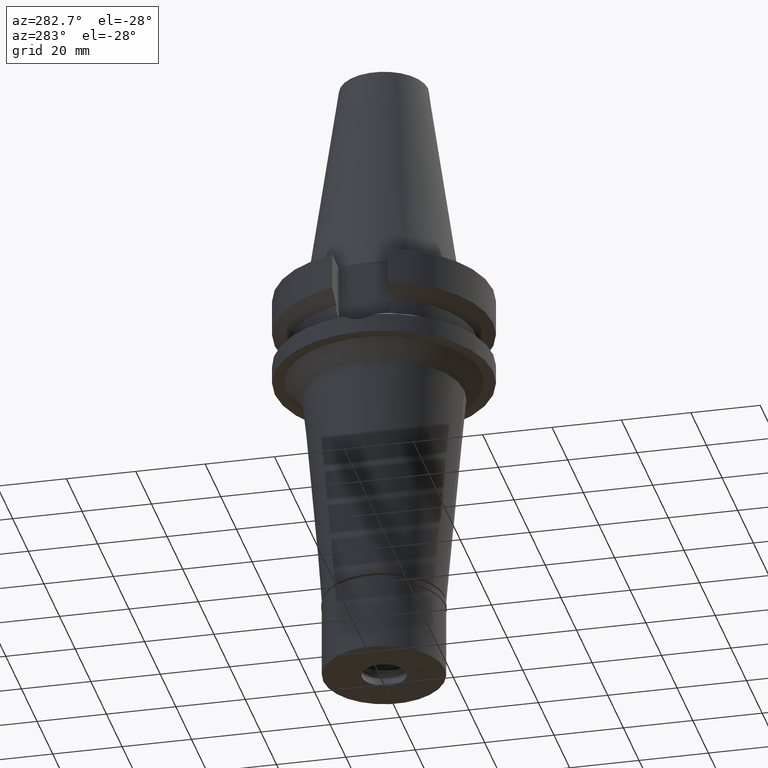
[diagram: clean part render]
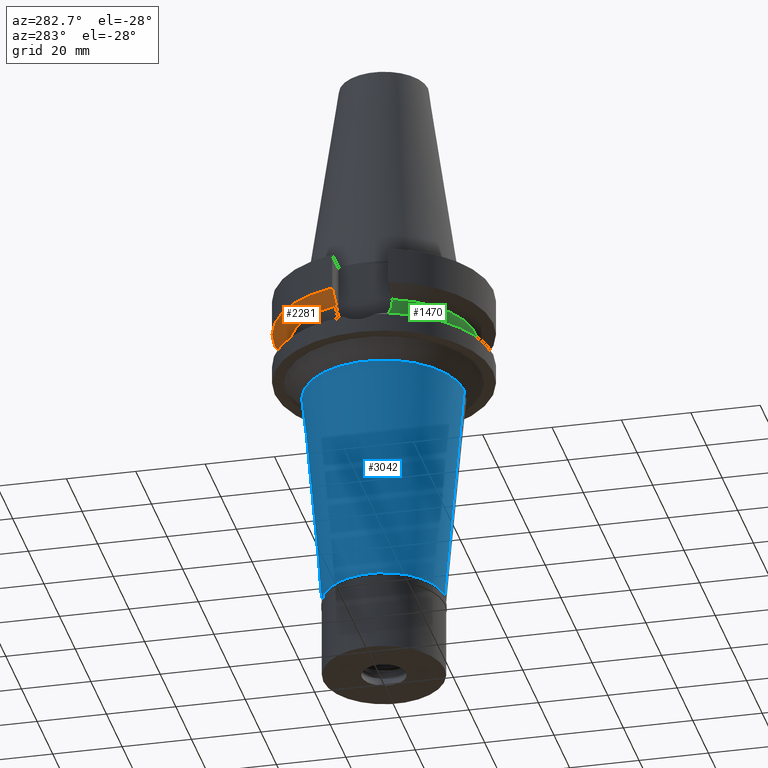
[diagram: same view with three faces highlighted in distinct colors, each labeled with its STEP entity id]
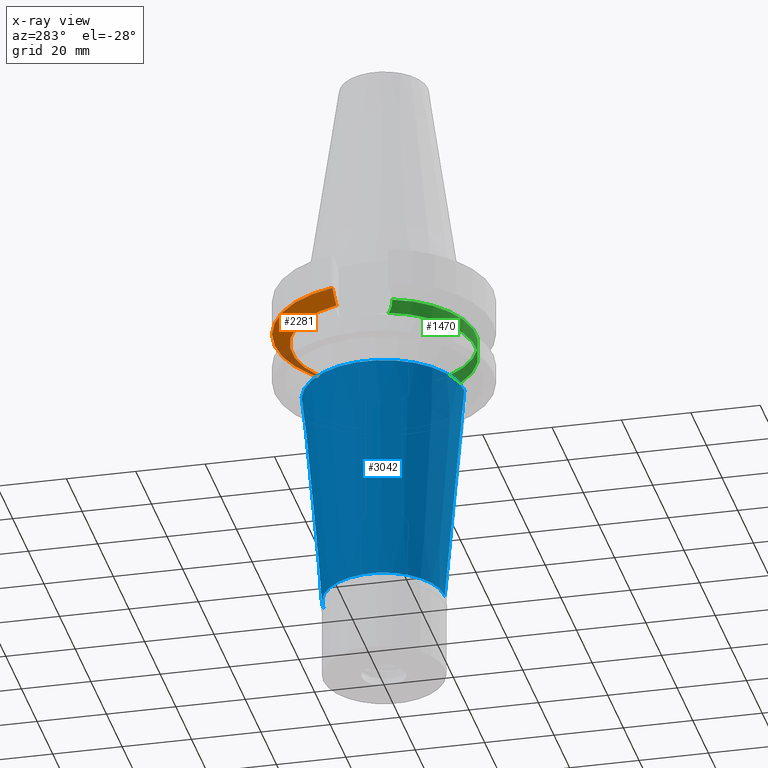
[diagram: x-ray of the same camera — body ghosted, the three highlighted faces saturated]
A machine part, auxiliary view with three faces highlighted in distinct colors.
The next image is the same camera in x-ray (body ghosted, the three faces saturated) — at least one of them is partly hidden behind the body in this view.
Their STEP definitions:

[orange] entity #2281 — the highlighted conical surface has half-angle 60 deg.
#112 = B_SPLINE_CURVE_WITH_KNOTS ( 'NONE', 3,
 ( #300, #2241, #2683, #802 ),
 .UNSPECIFIED., .F., .F.,
 ( 4, 4 ),
 ( 0.0000000000000000000, 1.000000000000000000 ),
 .UNSPECIFIED. ) ;
#117 = DIRECTION ( 'NONE',  ( 0.0000000000000000000, 1.000000000000000000, 0.0000000000000000000 ) ) ;
#172 = CIRCLE ( 'NONE', #2558, 26.50000000000000711 ) ;
#238 = AXIS2_PLACEMENT_3D ( 'NONE', #2807, #2314, #117 ) ;
#300 = CARTESIAN_POINT ( 'NONE',  ( -25.24772216385000334, 8.050001586146999344, -14.45224487905000110 ) ) ;
#425 = CARTESIAN_POINT ( 'NONE',  ( 30.45402291371999937, 8.049999277678001164, -11.56551215847000158 ) ) ;
#551 = CARTESIAN_POINT ( 'NONE',  ( 0.0000000000000000000, 1.065333950388000029E-14, -14.45225699861000024 ) ) ;
#712 = CARTESIAN_POINT ( 'NONE',  ( 25.24772413116000180, 8.049995415961999967, -14.45229202664000034 ) ) ;
#735 = CARTESIAN_POINT ( 'NONE',  ( 26.83754616580073815, 8.049990821773336691, -13.57774887784885642 ) ) ;
#802 = CARTESIAN_POINT ( 'NONE',  ( -30.45402162745000041, 8.050004143763999309, -11.56546832740999875 ) ) ;
#850 = AXIS2_PLACEMENT_3D ( 'NONE', #896, #2812, #2301 ) ;
#896 = CARTESIAN_POINT ( 'NONE',  ( 0.0000000000000000000, 1.065333950388000029E-14, -11.56550565266999975 ) ) ;
#950 = CARTESIAN_POINT ( 'NONE',  ( 28.57292329591216884, 8.049998556296824148, -12.61549605234778682 ) ) ;
#974 = EDGE_CURVE ( 'NONE', #1044, #1291, #172, .T. ) ;
#1044 = VERTEX_POINT ( 'NONE', #1724 ) ;
#1112 = ORIENTED_EDGE ( 'NONE', *, *, #2742, .T. ) ;
#1291 = VERTEX_POINT ( 'NONE', #2221 ) ;
#1304 = CONICAL_SURFACE ( 'NONE', #238, 29.00000000000000000, 1.047197551196400456 ) ;
#1533 = DIRECTION ( 'NONE',  ( -0.9527442516822307583, 0.3037735849057093818, 0.0000000000000000000 ) ) ;
#1628 = FACE_OUTER_BOUND ( 'NONE', #2019, .T. ) ;
#1711 = EDGE_CURVE ( 'NONE', #1749, #2177, #1911, .T. ) ;
#1724 = CARTESIAN_POINT ( 'NONE',  ( -25.24772216385000334, 8.050001586146999344, -14.45224487905000110 ) ) ;
#1749 = VERTEX_POINT ( 'NONE', #425 ) ;
#1911 = CIRCLE ( 'NONE', #850, 31.50000000000000000 ) ;
#2019 = EDGE_LOOP ( 'NONE', ( #2885, #2116, #2072, #1112 ) ) ;
#2072 = ORIENTED_EDGE ( 'NONE', *, *, #974, .F. ) ;
#2116 = ORIENTED_EDGE ( 'NONE', *, *, #2522, .T. ) ;
#2177 = VERTEX_POINT ( 'NONE', #2230 ) ;
#2221 = CARTESIAN_POINT ( 'NONE',  ( 25.24772413116000180, 8.049995415961999967, -14.45229202664000034 ) ) ;
#2230 = CARTESIAN_POINT ( 'NONE',  ( -30.45402162745000041, 8.050004143763999309, -11.56546832740999875 ) ) ;
#2241 = CARTESIAN_POINT ( 'NONE',  ( -26.83758147662552318, 8.050003175716827997, -13.57772735598590153 ) ) ;
#2281 = ADVANCED_FACE ( 'NONE', ( #1628 ), #1304, .T. ) ;
#2301 = DIRECTION ( 'NONE',  ( 0.0000000000000000000, 1.000000000000000000, 0.0000000000000000000 ) ) ;
#2314 = DIRECTION ( 'NONE',  ( 0.0000000000000000000, 0.0000000000000000000, 1.000000000000000000 ) ) ;
#2522 = EDGE_CURVE ( 'NONE', #1749, #1291, #2685, .T. ) ;
#2558 = AXIS2_PLACEMENT_3D ( 'NONE', #551, #3046, #1533 ) ;
#2632 = CARTESIAN_POINT ( 'NONE',  ( 30.45402291371999937, 8.049999277678001164, -11.56551215847000158 ) ) ;
#2683 = CARTESIAN_POINT ( 'NONE',  ( -28.57295870764646395, 8.050008282491374345, -12.61547480686212452 ) ) ;
#2685 = B_SPLINE_CURVE_WITH_KNOTS ( 'NONE', 3,
 ( #2632, #950, #735, #712 ),
 .UNSPECIFIED., .F., .F.,
 ( 4, 4 ),
 ( 0.0000000000000000000, 1.000000000000000000 ),
 .UNSPECIFIED. ) ;
#2742 = EDGE_CURVE ( 'NONE', #1044, #2177, #112, .T. ) ;
#2807 = CARTESIAN_POINT ( 'NONE',  ( 0.0000000000000000000, 1.065333950388000029E-14, -13.00888132564000088 ) ) ;
#2812 = DIRECTION ( 'NONE',  ( 0.0000000000000000000, 0.0000000000000000000, 1.000000000000000000 ) ) ;
#2885 = ORIENTED_EDGE ( 'NONE', *, *, #1711, .F. ) ;
#3046 = DIRECTION ( 'NONE',  ( 0.0000000000000000000, 0.0000000000000000000, -1.000000000000000000 ) ) ;

[blue] entity #3042 — the highlighted conical surface has half-angle 5 deg.
#84 = AXIS2_PLACEMENT_3D ( 'NONE', #1370, #160, #258 ) ;
#160 = DIRECTION ( 'NONE',  ( 0.0000000000000000000, 0.0000000000000000000, 1.000000000000000000 ) ) ;
#163 = CARTESIAN_POINT ( 'NONE',  ( 0.0000000000000000000, 23.16051653012999623, -32.00000000000000000 ) ) ;
#199 = DIRECTION ( 'NONE',  ( 0.0000000000000000000, 0.0000000000000000000, 1.000000000000000000 ) ) ;
#225 = DIRECTION ( 'NONE',  ( 0.0000000000000000000, 1.000000000000000000, 0.0000000000000000000 ) ) ;
#258 = DIRECTION ( 'NONE',  ( 0.0000000000000000000, 1.000000000000000000, 0.0000000000000000000 ) ) ;
#344 = AXIS2_PLACEMENT_3D ( 'NONE', #2139, #199, #225 ) ;
#428 = LINE ( 'NONE', #163, #517 ) ;
#443 = CONICAL_SURFACE ( 'NONE', #344, 20.33025826506000300, 0.08726646259969973729 ) ;
#517 = VECTOR ( 'NONE', #2831, 1000.000000000000000 ) ;
#581 = DIRECTION ( 'NONE',  ( 0.0000000000000000000, 0.08715574274769373464, -0.9961946980917424366 ) ) ;
#673 = EDGE_LOOP ( 'NONE', ( #1610, #2946, #1472, #3096 ) ) ;
#791 = CARTESIAN_POINT ( 'NONE',  ( 0.0000000000000000000, 0.0000000000000000000, -32.00000000000000000 ) ) ;
#832 = EDGE_CURVE ( 'NONE', #1538, #872, #1536, .T. ) ;
#872 = VERTEX_POINT ( 'NONE', #3017 ) ;
#1003 = AXIS2_PLACEMENT_3D ( 'NONE', #791, #2215, #2511 ) ;
#1045 = CIRCLE ( 'NONE', #1003, 23.16051653012999623 ) ;
#1160 = FACE_OUTER_BOUND ( 'NONE', #673, .T. ) ;
#1370 = CARTESIAN_POINT ( 'NONE',  ( 0.0000000000000000000, 0.0000000000000000000, -96.69999999999998863 ) ) ;
#1407 = EDGE_CURVE ( 'NONE', #2951, #1671, #428, .T. ) ;
#1414 = CIRCLE ( 'NONE', #84, 17.50000000000000000 ) ;
#1472 = ORIENTED_EDGE ( 'NONE', *, *, #1684, .T. ) ;
#1536 = LINE ( 'NONE', #2499, #2609 ) ;
#1538 = VERTEX_POINT ( 'NONE', #2410 ) ;
#1610 = ORIENTED_EDGE ( 'NONE', *, *, #1880, .T. ) ;
#1626 = CARTESIAN_POINT ( 'NONE',  ( 0.0000000000000000000, 23.16051653012999623, -32.00000000000000000 ) ) ;
#1671 = VERTEX_POINT ( 'NONE', #2995 ) ;
#1684 = EDGE_CURVE ( 'NONE', #1538, #2951, #1045, .T. ) ;
#1880 = EDGE_CURVE ( 'NONE', #1671, #872, #1414, .T. ) ;
#2139 = CARTESIAN_POINT ( 'NONE',  ( 0.0000000000000000000, 0.0000000000000000000, -64.35000000000000853 ) ) ;
#2215 = DIRECTION ( 'NONE',  ( 0.0000000000000000000, 0.0000000000000000000, -1.000000000000000000 ) ) ;
#2410 = CARTESIAN_POINT ( 'NONE',  ( 0.0000000000000000000, -23.16051653012999623, -32.00000000000000000 ) ) ;
#2499 = CARTESIAN_POINT ( 'NONE',  ( 0.0000000000000000000, -23.16051653012999623, -32.00000000000000000 ) ) ;
#2511 = DIRECTION ( 'NONE',  ( 0.0000000000000000000, -1.000000000000000000, 0.0000000000000000000 ) ) ;
#2609 = VECTOR ( 'NONE', #581, 1000.000000000000000 ) ;
#2831 = DIRECTION ( 'NONE',  ( 0.0000000000000000000, -0.08715574274769373464, -0.9961946980917424366 ) ) ;
#2946 = ORIENTED_EDGE ( 'NONE', *, *, #832, .F. ) ;
#2951 = VERTEX_POINT ( 'NONE', #1626 ) ;
#2995 = CARTESIAN_POINT ( 'NONE',  ( 0.0000000000000000000, 17.50000000000000000, -96.69999999999998863 ) ) ;
#3017 = CARTESIAN_POINT ( 'NONE',  ( 0.0000000000000000000, -17.50000000000000000, -96.69999999999998863 ) ) ;
#3042 = ADVANCED_FACE ( 'NONE', ( #1160 ), #443, .T. ) ;
#3096 = ORIENTED_EDGE ( 'NONE', *, *, #1407, .T. ) ;

[green] entity #1470 — the highlighted cylindrical surface (partial cylindrical patch) has radius 26.5 mm, axis along (0, 0, -1).
#27 = CARTESIAN_POINT ( 'NONE',  ( -25.34384264177291257, -7.742472632728802928, -17.15618260506893122 ) ) ;
#45 = CARTESIAN_POINT ( 'NONE',  ( -25.32546393109333138, -7.802212764485517482, -16.93200521434277661 ) ) ;
#69 = AXIS2_PLACEMENT_3D ( 'NONE', #246, #2872, #1688 ) ;
#74 = CARTESIAN_POINT ( 'NONE',  ( -25.27267964220301266, -7.973335156087142828, -16.24499043091581285 ) ) ;
#116 = CIRCLE ( 'NONE', #618, 26.50000000000000711 ) ;
#136 = EDGE_CURVE ( 'NONE', #817, #2035, #3048, .T. ) ;
#153 = ORIENTED_EDGE ( 'NONE', *, *, #1201, .T. ) ;
#170 = LINE ( 'NONE', #2031, #1367 ) ;
#246 = CARTESIAN_POINT ( 'NONE',  ( 0.0000000000000000000, 2.134987997294000229E-14, 74.33499999999999375 ) ) ;
#254 = CARTESIAN_POINT ( 'NONE',  ( 25.24772266958000344, -8.050000000000000711, -14.94999999999999929 ) ) ;
#288 = CARTESIAN_POINT ( 'NONE',  ( -25.53175183775000079, -7.097862220092999941, -18.74774300138999905 ) ) ;
#302 = DIRECTION ( 'NONE',  ( 1.016149199559004009E-06, 3.187014657406015774E-06, -0.9999999999944051421 ) ) ;
#366 = CARTESIAN_POINT ( 'NONE',  ( 25.36814761471071833, -7.663830712965396863, -17.48803584493440155 ) ) ;
#476 = DIRECTION ( 'NONE',  ( 0.9527442516822307583, -0.3037735849057093818, 0.0000000000000000000 ) ) ;
#549 = EDGE_CURVE ( 'NONE', #817, #3009, #976, .T. ) ;
#558 = LINE ( 'NONE', #1718, #1461 ) ;
#618 = AXIS2_PLACEMENT_3D ( 'NONE', #1681, #2656, #476 ) ;
#651 = CARTESIAN_POINT ( 'NONE',  ( 25.24772266958000344, -8.050000000000000711, -14.94999999999999929 ) ) ;
#738 = CARTESIAN_POINT ( 'NONE',  ( -25.24772266958000344, -8.050000000000000711, -14.94999999999999929 ) ) ;
#817 = VERTEX_POINT ( 'NONE', #2962 ) ;
#882 = CARTESIAN_POINT ( 'NONE',  ( 25.43786330456364553, -7.435589081429987424, -18.11654211998960662 ) ) ;
#910 = VERTEX_POINT ( 'NONE', #3037 ) ;
#972 = CYLINDRICAL_SURFACE ( 'NONE', #69, 26.50000000000000000 ) ;
#976 = CIRCLE ( 'NONE', #2743, 26.49999999999998224 ) ;
#1124 = ORIENTED_EDGE ( 'NONE', *, *, #136, .F. ) ;
#1138 = VERTEX_POINT ( 'NONE', #1616 ) ;
#1179 = CARTESIAN_POINT ( 'NONE',  ( 0.0000000000000000000, 0.0000000000000000000, -18.74774300138999905 ) ) ;
#1188 = CARTESIAN_POINT ( 'NONE',  ( 25.53175183775000079, -7.097862220092999941, -18.74774300138999905 ) ) ;
#1201 = EDGE_CURVE ( 'NONE', #1138, #910, #116, .T. ) ;
#1247 = EDGE_LOOP ( 'NONE', ( #1124, #2583, #1526, #2326, #153, #1355 ) ) ;
#1248 = CARTESIAN_POINT ( 'NONE',  ( -25.32840508997111684, -7.792668837077460608, -16.96920308231356600 ) ) ;
#1297 = CARTESIAN_POINT ( 'NONE',  ( -25.37569502941952138, -7.637838761643646279, -17.49780446133065936 ) ) ;
#1334 = CARTESIAN_POINT ( 'NONE',  ( 25.53175183775000079, -7.097862220092999941, -18.74774300138999905 ) ) ;
#1355 = ORIENTED_EDGE ( 'NONE', *, *, #2882, .F. ) ;
#1367 = VECTOR ( 'NONE', #2771, 1000.000000000000114 ) ;
#1375 = EDGE_CURVE ( 'NONE', #2692, #3009, #1490, .T. ) ;
#1389 = CARTESIAN_POINT ( 'NONE',  ( 25.27268336911707891, -7.971811480182260823, -16.08115959834935182 ) ) ;
#1461 = VECTOR ( 'NONE', #302, 1000.000000000000114 ) ;
#1470 = ADVANCED_FACE ( 'NONE', ( #2164 ), #972, .T. ) ;
#1490 = B_SPLINE_CURVE_WITH_KNOTS ( 'NONE', 3,
 ( #651, #2110, #3102, #1389, #2353, #1823, #2370, #1636, #1838, #1591, #2582, #366, #882, #1334 ),
 .UNSPECIFIED., .F., .F.,
 ( 4, 2, 2, 1, 1, 2, 2, 4 ),
 ( 0.0000000000000000000, 0.2499999999999888978, 0.3749999999999832911, 0.4374999999999816813, 0.4687499999999808487, 0.4843749999999804046, 0.4999999999999800160, 1.000000000000000000 ),
 .UNSPECIFIED. ) ;
#1496 = CARTESIAN_POINT ( 'NONE',  ( -25.44390372120500388, -7.408325733681293990, -18.11690357774890714 ) ) ;
#1526 = ORIENTED_EDGE ( 'NONE', *, *, #1375, .F. ) ;
#1591 = CARTESIAN_POINT ( 'NONE',  ( 25.31950905643225980, -7.821515286679934675, -16.85442525727312812 ) ) ;
#1616 = CARTESIAN_POINT ( 'NONE',  ( 25.24772266958000344, -8.050000000000000711, -14.45225699861000024 ) ) ;
#1636 = CARTESIAN_POINT ( 'NONE',  ( 25.31202572170775866, -7.845729406580135290, -16.75279821057739582 ) ) ;
#1681 = CARTESIAN_POINT ( 'NONE',  ( 0.0000000000000000000, 1.065333950388000029E-14, -14.45225699861000024 ) ) ;
#1682 = DIRECTION ( 'NONE',  ( -0.9634623335000935818, -0.2678438573619981722, 0.0000000000000000000 ) ) ;
#1688 = DIRECTION ( 'NONE',  ( 0.0000000000000000000, -1.000000000000000000, 0.0000000000000000000 ) ) ;
#1718 = CARTESIAN_POINT ( 'NONE',  ( 25.24772216379000156, -8.050001586352999894, -14.45224487748000008 ) ) ;
#1739 = CARTESIAN_POINT ( 'NONE',  ( -25.24772266958000344, -8.050000000000000711, -14.94999999999999929 ) ) ;
#1758 = CARTESIAN_POINT ( 'NONE',  ( -25.24772266957999989, -8.049999999999979394, -15.58980474793769311 ) ) ;
#1774 = CARTESIAN_POINT ( 'NONE',  ( -25.48480632951450886, -7.266730117092556895, -18.43213421325550883 ) ) ;
#1823 = CARTESIAN_POINT ( 'NONE',  ( 25.29452398121202350, -7.902090651792934572, -16.48828405102940664 ) ) ;
#1838 = CARTESIAN_POINT ( 'NONE',  ( 25.31648647172268340, -7.831300037042765894, -16.81378020971403231 ) ) ;
#1968 = CARTESIAN_POINT ( 'NONE',  ( -25.32415339823800693, -7.806463147615989584, -16.91521530250349770 ) ) ;
#2031 = CARTESIAN_POINT ( 'NONE',  ( -25.24772266958000344, -8.050000000000000711, -14.94999999999999929 ) ) ;
#2035 = VERTEX_POINT ( 'NONE', #738 ) ;
#2110 = CARTESIAN_POINT ( 'NONE',  ( 25.24772266958000699, -8.050000000000000711, -15.26991324108734283 ) ) ;
#2164 = FACE_OUTER_BOUND ( 'NONE', #1247, .T. ) ;
#2192 = EDGE_CURVE ( 'NONE', #1138, #2692, #558, .T. ) ;
#2213 = CARTESIAN_POINT ( 'NONE',  ( -25.35408242307641657, -7.708967323042730690, -17.26962711287178109 ) ) ;
#2246 = CARTESIAN_POINT ( 'NONE',  ( -25.33288764352128908, -7.778115188376813371, -17.02509724668798086 ) ) ;
#2326 = ORIENTED_EDGE ( 'NONE', *, *, #2192, .F. ) ;
#2353 = CARTESIAN_POINT ( 'NONE',  ( 25.28048358772242565, -7.947040743794929085, -16.24400980664070460 ) ) ;
#2370 = CARTESIAN_POINT ( 'NONE',  ( 25.30212919435223284, -7.877667573970344783, -16.61042047323939741 ) ) ;
#2582 = CARTESIAN_POINT ( 'NONE',  ( 25.32118155423751560, -7.816096717212926315, -16.87652453452369627 ) ) ;
#2583 = ORIENTED_EDGE ( 'NONE', *, *, #549, .T. ) ;
#2656 = DIRECTION ( 'NONE',  ( 0.0000000000000000000, 0.0000000000000000000, -1.000000000000000000 ) ) ;
#2692 = VERTEX_POINT ( 'NONE', #254 ) ;
#2743 = AXIS2_PLACEMENT_3D ( 'NONE', #1179, #3123, #1682 ) ;
#2771 = DIRECTION ( 'NONE',  ( -2.936854961040898761E-06, 9.211049204651675559E-06, 0.9999999999532657169 ) ) ;
#2872 = DIRECTION ( 'NONE',  ( 0.0000000000000000000, 0.0000000000000000000, -1.000000000000000000 ) ) ;
#2882 = EDGE_CURVE ( 'NONE', #2035, #910, #170, .T. ) ;
#2957 = CARTESIAN_POINT ( 'NONE',  ( -25.39161415862976412, -7.584927955216305584, -17.65164487413664318 ) ) ;
#2962 = CARTESIAN_POINT ( 'NONE',  ( -25.53175183775000079, -7.097862220092999941, -18.74774300138999905 ) ) ;
#3009 = VERTEX_POINT ( 'NONE', #1188 ) ;
#3037 = CARTESIAN_POINT ( 'NONE',  ( -25.24772413127999826, -8.049995415587000380, -14.45229202951000147 ) ) ;
#3048 = B_SPLINE_CURVE_WITH_KNOTS ( 'NONE', 3,
 ( #288, #1774, #1496, #2957, #1297, #2213, #27, #2246, #1248, #45, #1968, #74, #1758, #1739 ),
 .UNSPECIFIED., .F., .F.,
 ( 4, 2, 2, 1, 1, 2, 2, 4 ),
 ( 0.0000000000000000000, 0.2499999999999762412, 0.3749999999999643618, 0.4374999999999583111, 0.4687499999999565903, 0.4843749999999569233, 0.4999999999999572564, 1.000000000000000000 ),
 .UNSPECIFIED. ) ;
#3102 = CARTESIAN_POINT ( 'NONE',  ( 25.25396284446427231, -8.030907492774097989, -15.59360398733918451 ) ) ;
#3123 = DIRECTION ( 'NONE',  ( 0.0000000000000000000, 0.0000000000000000000, 1.000000000000000000 ) ) ;